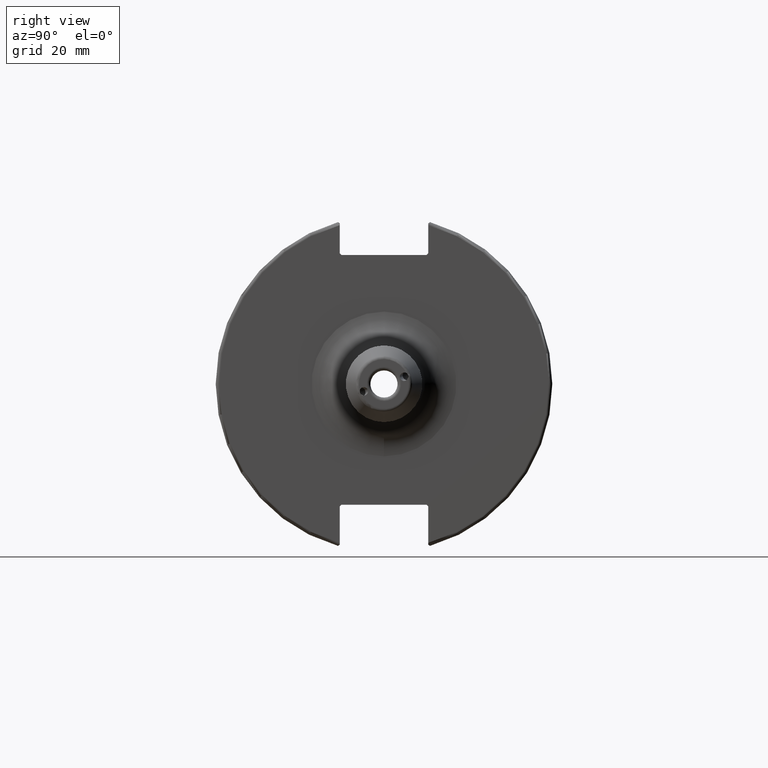
[diagram: clean part render]
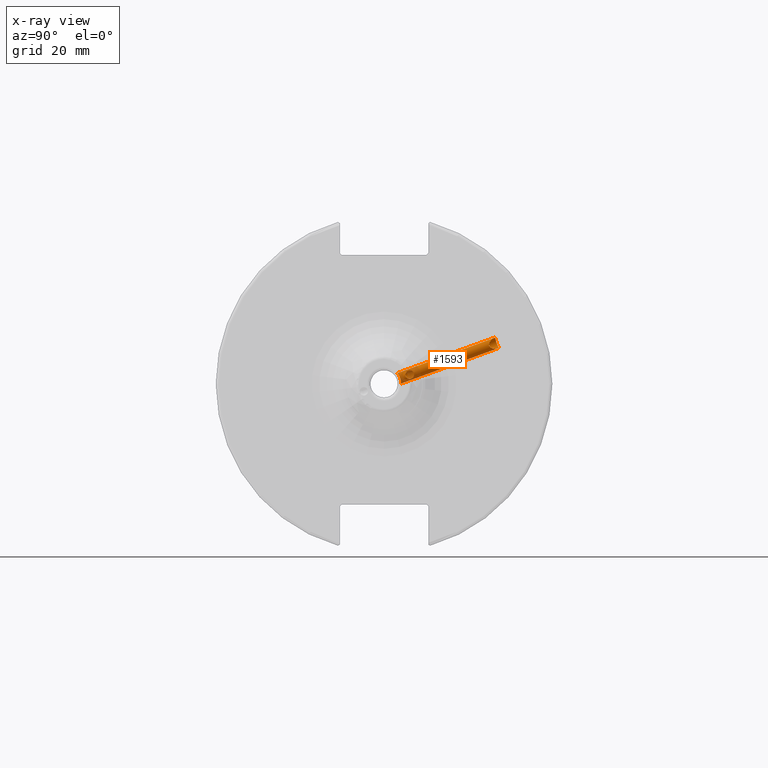
[diagram: x-ray — body ghosted, one internal face saturated and labeled with its STEP entity id]
A machine part, right view, then the same camera in x-ray: the body is ghosted and one INTERNAL B-rep face — a face not visible from any outside direction — is saturated and labeled: STEP entity #1593.
In plain terms, the highlighted cylindrical surface (bore or boss wall) has radius 1.621 mm, axis along (-0, 0.9397, 0.342).
Its self-contained STEP definition (entity closure, byte-faithful):
#66=FACE_BOUND('',#322,.T.);
#222=FACE_OUTER_BOUND('',#321,.T.);
#321=EDGE_LOOP('',(#1227,#1228,#1229,#1230,#1231,#1232));
#322=EDGE_LOOP('',(#1233,#1234));
#425=LINE('',#2952,#520);
#520=VECTOR('',#2028,1.621);
#590=B_SPLINE_CURVE_WITH_KNOTS('',3,(#2388,#2389,#2390,#2391,#2392,#2393,
#2394,#2395,#2396,#2397,#2398,#2399,#2400,#2401,#2402,#2403,#2404,#2405,
#2406,#2407,#2408,#2409,#2410,#2411,#2412,#2413,#2414,#2415,#2416,#2417,
#2418,#2419),.UNSPECIFIED.,.F.,.F.,(4,2,2,2,2,2,2,2,2,2,2,2,2,2,2,4),(0.,
0.025045594426084,0.0500911888521681,0.100182377704336,0.148964641632015,
0.197746905559694,0.246529169487373,0.295311433415053,0.345402622267221,
0.370448216693305,0.395493811119389,0.420038660181087,0.444583509242785,
0.493673207366182,0.542208205170651,0.548655864493759),.UNSPECIFIED.);
#591=B_SPLINE_CURVE_WITH_KNOTS('',3,(#2420,#2421,#2422,#2423,#2424,#2425,
#2426,#2427,#2428,#2429,#2430,#2431,#2432,#2433),.UNSPECIFIED.,.F.,.F.,
(4,2,2,2,2,2,4),(0.548655864493759,0.590743202975119,0.639278200779588,
0.687813198584057,0.736902896707453,0.761447745769152,0.78599259483085),
 .UNSPECIFIED.);
#599=B_SPLINE_CURVE_WITH_KNOTS('',3,(#2636,#2637,#2638,#2639,#2640,#2641,
#2642,#2643,#2644,#2645,#2646,#2647,#2648,#2649,#2650,#2651,#2652,#2653,
#2654,#2655,#2656,#2657,#2658,#2659,#2660,#2661),.UNSPECIFIED.,.F.,.F.,
(4,2,2,2,2,2,2,2,2,2,2,2,4),(0.,0.0615571381436262,0.123114276287252,0.184646021803299,
0.246177767319345,0.307709512835392,0.369241258351438,0.430798396495064,
0.49235553463869,0.553912672782317,0.615469810925943,0.677001556441989,
0.738533301958035),.UNSPECIFIED.);
#600=B_SPLINE_CURVE_WITH_KNOTS('',3,(#2662,#2663,#2664,#2665,#2666,#2667,
#2668,#2669,#2670,#2671),.UNSPECIFIED.,.F.,.F.,(4,2,2,2,4),(0.738533301958035,
0.800065047474082,0.861596792990128,0.923153931133754,0.98471106927738),
 .UNSPECIFIED.);
#610=B_SPLINE_CURVE_WITH_KNOTS('',3,(#2908,#2909,#2910,#2911,#2912,#2913,
#2914,#2915,#2916,#2917,#2918,#2919,#2920,#2921,#2922,#2923,#2924,#2925,
#2926,#2927,#2928,#2929,#2930,#2931,#2932,#2933,#2934,#2935,#2936,#2937,
#2938,#2939),.UNSPECIFIED.,.F.,.F.,(4,2,2,2,2,2,2,2,2,2,2,2,2,2,2,4),(0.,
0.0884839677067702,0.17696793541354,0.264588928472713,0.29293468020263,
0.321280431932547,0.349626183662464,0.377971935392381,0.465592928451554,
0.554076896158325,0.642560863865095,0.674019283137882,0.705477702410668,
0.76839454095624,0.837532569122269,0.892424435682428),.UNSPECIFIED.);
#611=B_SPLINE_CURVE_WITH_KNOTS('',3,(#2940,#2941,#2942,#2943,#2944,#2945,
#2946,#2947,#2948,#2949,#2950,#2951),.UNSPECIFIED.,.F.,.F.,(4,2,2,2,2,4),
(0.892424435682428,0.947316302242586,1.01645433040861,1.07937116895419,
1.11082958822697,1.14228800749976),.UNSPECIFIED.);
#647=VERTEX_POINT('',#2385);
#648=VERTEX_POINT('',#2387);
#682=VERTEX_POINT('',#2634);
#683=VERTEX_POINT('',#2635);
#715=VERTEX_POINT('',#2906);
#716=VERTEX_POINT('',#2907);
#817=EDGE_CURVE('',#648,#647,#590,.T.);
#818=EDGE_CURVE('',#647,#648,#591,.T.);
#863=EDGE_CURVE('',#682,#683,#599,.T.);
#864=EDGE_CURVE('',#683,#682,#600,.T.);
#907=EDGE_CURVE('',#715,#716,#610,.T.);
#908=EDGE_CURVE('',#716,#715,#611,.T.);
#909=EDGE_CURVE('',#716,#683,#425,.T.);
#1227=ORIENTED_EDGE('',*,*,#907,.F.);
#1228=ORIENTED_EDGE('',*,*,#908,.F.);
#1229=ORIENTED_EDGE('',*,*,#909,.T.);
#1230=ORIENTED_EDGE('',*,*,#864,.T.);
#1231=ORIENTED_EDGE('',*,*,#863,.T.);
#1232=ORIENTED_EDGE('',*,*,#909,.F.);
#1233=ORIENTED_EDGE('',*,*,#817,.T.);
#1234=ORIENTED_EDGE('',*,*,#818,.T.);
#1548=CYLINDRICAL_SURFACE('',#1746,1.621);
#1593=ADVANCED_FACE('',(#222,#66),#1548,.F.);
#1746=AXIS2_PLACEMENT_3D('',#2905,#2026,#2027);
#2026=DIRECTION('center_axis',(-1.20908356884163E-16,0.939692620785908,
0.342020143325669));
#2027=DIRECTION('ref_axis',(1.,1.28667985902711E-16,0.));
#2028=DIRECTION('',(1.20908356884163E-16,-0.939692620785908,-0.342020143325669));
#2385=CARTESIAN_POINT('',(12.6925667925574,8.75406849713554,2.73895970133337));
#2387=CARTESIAN_POINT('',(12.1833951675391,7.12010129947421,3.89991150922786));
#2388=CARTESIAN_POINT('Ctrl Pts',(12.1833951675391,7.12010129947421,3.89991150922786));
#2389=CARTESIAN_POINT('Ctrl Pts',(12.1833951675391,7.04165076525625,3.87135784991024));
#2390=CARTESIAN_POINT('Ctrl Pts',(12.1935820348692,6.96599669617725,3.83470617355099));
#2391=CARTESIAN_POINT('Ctrl Pts',(12.230396857951,6.8242024148161,3.74778330344678));
#2392=CARTESIAN_POINT('Ctrl Pts',(12.256929684032,6.75804792244897,3.69749514106935));
#2393=CARTESIAN_POINT('Ctrl Pts',(12.3493794508506,6.57767811246163,3.53092053777448));
#2394=CARTESIAN_POINT('Ctrl Pts',(12.427352432405,6.48162429631099,3.39782302681427));
#2395=CARTESIAN_POINT('Ctrl Pts',(12.5611553668651,6.35126513468876,3.12629947762893));
#2396=CARTESIAN_POINT('Ctrl Pts',(12.6279216125252,6.30641843950241,2.96819479769488));
#2397=CARTESIAN_POINT('Ctrl Pts',(12.7216694070153,6.28577656387845,2.64007500020454));
#2398=CARTESIAN_POINT('Ctrl Pts',(12.748,6.31041630515726,2.46984703744832));
#2399=CARTESIAN_POINT('Ctrl Pts',(12.748,6.4216464178259,2.16424481452785));
#2400=CARTESIAN_POINT('Ctrl Pts',(12.7216694070153,6.51219170622126,2.01800450919508));
#2401=CARTESIAN_POINT('Ctrl Pts',(12.6279216125252,6.73891564065819,1.77991850354205));
#2402=CARTESIAN_POINT('Ctrl Pts',(12.5611553668651,6.874897931593,1.68763019204864));
#2403=CARTESIAN_POINT('Ctrl Pts',(12.427352432405,7.14929081611781,1.56342433991917));
#2404=CARTESIAN_POINT('Ctrl Pts',(12.3493794508506,7.30842573914573,1.52320793413987));
#2405=CARTESIAN_POINT('Ctrl Pts',(12.256929684032,7.55366912087935,1.51154386394246));
#2406=CARTESIAN_POINT('Ctrl Pts',(12.230396857951,7.63667100983466,1.51554418461726));
#2407=CARTESIAN_POINT('Ctrl Pts',(12.1935820348692,7.8011646750388,1.54010101017733));
#2408=CARTESIAN_POINT('Ctrl Pts',(12.1833951675391,7.88267829769407,1.56065369539769));
#2409=CARTESIAN_POINT('Ctrl Pts',(12.1833951675391,8.03801087705064,1.61719013069527));
#2410=CARTESIAN_POINT('Ctrl Pts',(12.1932152318143,8.11227932168664,1.65300359007442));
#2411=CARTESIAN_POINT('Ctrl Pts',(12.229400565676,8.25104035436311,1.73818405294648));
#2412=CARTESIAN_POINT('Ctrl Pts',(12.2556770968914,8.31554899851588,1.78756257314868));
#2413=CARTESIAN_POINT('Ctrl Pts',(12.3476867349405,8.49032860096784,1.95137409511336));
#2414=CARTESIAN_POINT('Ctrl Pts',(12.4258009354927,8.58185974900871,2.08270364042412));
#2415=CARTESIAN_POINT('Ctrl Pts',(12.5605095590721,8.70490024269459,2.35216601428128));
#2416=CARTESIAN_POINT('Ctrl Pts',(12.6278541355931,8.74566160317639,2.50998527483263));
#2417=CARTESIAN_POINT('Ctrl Pts',(12.6811260279815,8.75385604159423,2.69526302127143));
#2418=CARTESIAN_POINT('Ctrl Pts',(12.6870325251844,8.75425010295389,2.71708768061763));
#2419=CARTESIAN_POINT('Ctrl Pts',(12.6925667925574,8.75406849713554,2.73895970133726));
#2420=CARTESIAN_POINT('Ctrl Pts',(12.6925667925574,8.75406849713553,2.73895970133726));
#2421=CARTESIAN_POINT('Ctrl Pts',(12.728691930767,8.752883058333,2.88173013835449));
#2422=CARTESIAN_POINT('Ctrl Pts',(12.748,8.72612638434642,3.02675556396527));
#2423=CARTESIAN_POINT('Ctrl Pts',(12.748,8.62281083619646,3.31061269958585));
#2424=CARTESIAN_POINT('Ctrl Pts',(12.7219038347232,8.53429206877315,3.45756756113048));
#2425=CARTESIAN_POINT('Ctrl Pts',(12.6278541355931,8.31295290767036,3.6988426449371));
#2426=CARTESIAN_POINT('Ctrl Pts',(12.5605095590721,8.18028362872702,3.79353831502794));
#2427=CARTESIAN_POINT('Ctrl Pts',(12.4258009354927,7.91282206706823,3.92086956431987));
#2428=CARTESIAN_POINT('Ctrl Pts',(12.3476867349405,7.75828813522769,3.96263874486146));
#2429=CARTESIAN_POINT('Ctrl Pts',(12.2556770968914,7.51910317535604,3.97577948809931));
#2430=CARTESIAN_POINT('Ctrl Pts',(12.229400565676,7.43794678599903,3.97214027193057));
#2431=CARTESIAN_POINT('Ctrl Pts',(12.1932152318143,7.27689672187425,3.94819841966427));
#2432=CARTESIAN_POINT('Ctrl Pts',(12.1833951675391,7.19698334461282,3.92789428520782));
#2433=CARTESIAN_POINT('Ctrl Pts',(12.1833951675391,7.12010129947421,3.89991150922786));
#2634=CARTESIAN_POINT('',(11.127,4.9991070090308,0.0944939800153009));
#2635=CARTESIAN_POINT('',(9.50600000000001,4.69846310392954,1.71010071662834));
#2636=CARTESIAN_POINT('Ctrl Pts',(11.127,4.9991070090308,0.0944939800153009));
#2637=CARTESIAN_POINT('Ctrl Pts',(11.3321904604788,4.9991070090308,0.0944939800153003));
#2638=CARTESIAN_POINT('Ctrl Pts',(11.5499450588817,4.99884098678372,0.138360894305665));
#2639=CARTESIAN_POINT('Ctrl Pts',(11.9488278062023,4.99101167717621,0.312020890824146));
#2640=CARTESIAN_POINT('Ctrl Pts',(12.13009959843,4.98264433018653,0.44144663116281));
#2641=CARTESIAN_POINT('Ctrl Pts',(12.4162815482567,4.94810003706503,0.733422006592142));
#2642=CARTESIAN_POINT('Ctrl Pts',(12.5408092905,4.91949892098376,0.915942632748048));
#2643=CARTESIAN_POINT('Ctrl Pts',(12.7067079427904,4.83007600423685,1.30797031013204));
#2644=CARTESIAN_POINT('Ctrl Pts',(12.748,4.76861342533113,1.51736429260999));
#2645=CARTESIAN_POINT('Ctrl Pts',(12.748,4.62831278252795,1.90283714064669));
#2646=CARTESIAN_POINT('Ctrl Pts',(12.7067079427904,4.54079999207869,2.10274962152647));
#2647=CARTESIAN_POINT('Ctrl Pts',(12.5408092905,4.35731138686353,2.46054018824225));
#2648=CARTESIAN_POINT('Ctrl Pts',(12.4162815482567,4.26189911589935,2.61874354270383));
#2649=CARTESIAN_POINT('Ctrl Pts',(12.13009959843,4.10068342602699,2.86461430018292));
#2650=CARTESIAN_POINT('Ctrl Pts',(11.9488278062023,4.02389992342788,2.96913859633684));
#2651=CARTESIAN_POINT('Ctrl Pts',(11.5499450588817,3.91827102848589,3.10720245486998));
#2652=CARTESIAN_POINT('Ctrl Pts',(11.3321904604788,3.89027770436898,3.14097745660322));
#2653=CARTESIAN_POINT('Ctrl Pts',(10.9218095395212,3.89027770436898,3.14097745660322));
#2654=CARTESIAN_POINT('Ctrl Pts',(10.7040549411183,3.91827102848589,3.10720245486998));
#2655=CARTESIAN_POINT('Ctrl Pts',(10.3051721937977,4.02389992342789,2.96913859633683));
#2656=CARTESIAN_POINT('Ctrl Pts',(10.12390040157,4.10068342602699,2.86461430018292));
#2657=CARTESIAN_POINT('Ctrl Pts',(9.83771845174332,4.26189911589935,2.61874354270383));
#2658=CARTESIAN_POINT('Ctrl Pts',(9.71319070950005,4.35731138686353,2.46054018824225));
#2659=CARTESIAN_POINT('Ctrl Pts',(9.5472920572096,4.54079999207869,2.10274962152646));
#2660=CARTESIAN_POINT('Ctrl Pts',(9.50600000000001,4.62831278252795,1.90283714064669));
#2661=CARTESIAN_POINT('Ctrl Pts',(9.50600000000001,4.69846310392954,1.71010071662834));
#2662=CARTESIAN_POINT('Ctrl Pts',(9.50600000000001,4.69846310392954,1.71010071662834));
#2663=CARTESIAN_POINT('Ctrl Pts',(9.50600000000001,4.76861342533113,1.51736429260999));
#2664=CARTESIAN_POINT('Ctrl Pts',(9.5472920572096,4.83007600423685,1.30797031013204));
#2665=CARTESIAN_POINT('Ctrl Pts',(9.71319070950005,4.91949892098376,0.915942632748052));
#2666=CARTESIAN_POINT('Ctrl Pts',(9.83771845174332,4.94810003706503,0.733422006592146));
#2667=CARTESIAN_POINT('Ctrl Pts',(10.12390040157,4.98264433018653,0.441446631162813));
#2668=CARTESIAN_POINT('Ctrl Pts',(10.3051721937977,4.99101167717621,0.312020890824149));
#2669=CARTESIAN_POINT('Ctrl Pts',(10.7040549411183,4.99884098678372,0.138360894305667));
#2670=CARTESIAN_POINT('Ctrl Pts',(10.9218095395213,4.9991070090308,0.0944939800153013));
#2671=CARTESIAN_POINT('Ctrl Pts',(11.127,4.9991070090308,0.0944939800153008));
#2905=CARTESIAN_POINT('Origin',(11.127,21.5598376450015,7.84713915839248));
#2906=CARTESIAN_POINT('',(11.127,33.3180066739614,10.4017305252212));
#2907=CARTESIAN_POINT('',(9.506,32.9302546125277,11.9856324857674));
#2908=CARTESIAN_POINT('Ctrl Pts',(11.127,33.3180066739614,10.4017305252212));
#2909=CARTESIAN_POINT('Ctrl Pts',(11.3686060767793,33.1590347421905,10.3438694739727));
#2910=CARTESIAN_POINT('Ctrl Pts',(11.5793820284691,32.9265222260495,10.3130739191917));
#2911=CARTESIAN_POINT('Ctrl Pts',(11.9610018879898,32.4227535856658,10.3052665038932));
#2912=CARTESIAN_POINT('Ctrl Pts',(12.1308400889368,32.1507028147897,10.3305992558997));
#2913=CARTESIAN_POINT('Ctrl Pts',(12.4142114787667,31.6507121188742,10.450175059589));
#2914=CARTESIAN_POINT('Ctrl Pts',(12.5624213105869,31.3550631351684,10.5662118597017));
#2915=CARTESIAN_POINT('Ctrl Pts',(12.6780350131118,31.0691918693162,10.7993137473042));
#2916=CARTESIAN_POINT('Ctrl Pts',(12.7040094113745,30.9979746661842,10.8699279351394));
#2917=CARTESIAN_POINT('Ctrl Pts',(12.7390906022264,30.8779301513201,11.0303555632259));
#2918=CARTESIAN_POINT('Ctrl Pts',(12.748,30.8293999774207,11.1204342022846));
#2919=CARTESIAN_POINT('Ctrl Pts',(12.748,30.7647678569584,11.2980094938262));
#2920=CARTESIAN_POINT('Ctrl Pts',(12.7390906022264,30.7440426939133,11.3982083291993));
#2921=CARTESIAN_POINT('Ctrl Pts',(12.7040094113745,30.7328812358665,11.5982661489831));
#2922=CARTESIAN_POINT('Ctrl Pts',(12.6780350131118,30.7420468535717,11.6981372909494));
#2923=CARTESIAN_POINT('Ctrl Pts',(12.5624213105869,30.8112019430797,12.0604582042831));
#2924=CARTESIAN_POINT('Ctrl Pts',(12.4142114787667,30.9630951867812,12.3393870537492));
#2925=CARTESIAN_POINT('Ctrl Pts',(12.1308400889368,31.2692484359686,12.7523752579899));
#2926=CARTESIAN_POINT('Ctrl Pts',(11.9610018879898,31.4613678381355,12.9466521366183));
#2927=CARTESIAN_POINT('Ctrl Pts',(11.5793820284691,31.8522955155365,13.264487549701));
#2928=CARTESIAN_POINT('Ctrl Pts',(11.3686060767793,32.0502054375286,13.3903529505607));
#2929=CARTESIAN_POINT('Ctrl Pts',(11.0411025718087,32.2656961467896,13.4687851544926));
#2930=CARTESIAN_POINT('Ctrl Pts',(10.9475197272613,32.319337112024,13.4809373024586));
#2931=CARTESIAN_POINT('Ctrl Pts',(10.7524056152646,32.4120347916018,13.478660481775));
#2932=CARTESIAN_POINT('Ctrl Pts',(10.6508468329885,32.4510290142907,13.4640493136015));
#2933=CARTESIAN_POINT('Ctrl Pts',(10.3515687330207,32.5462208483495,13.3776426663642));
#2934=CARTESIAN_POINT('Ctrl Pts',(10.1588386735598,32.5827431071443,13.2604924449868));
#2935=CARTESIAN_POINT('Ctrl Pts',(9.84134561894807,32.655830196381,12.9644900573906));
#2936=CARTESIAN_POINT('Ctrl Pts',(9.69002806088231,32.7033162128217,12.737930692361));
#2937=CARTESIAN_POINT('Ctrl Pts',(9.54526126545399,32.8036762615874,12.3639022622834));
#2938=CARTESIAN_POINT('Ctrl Pts',(9.506,32.8676741989667,12.1575707589266));
#2939=CARTESIAN_POINT('Ctrl Pts',(9.506,32.9302546125277,11.9856324857674));
#2940=CARTESIAN_POINT('Ctrl Pts',(9.506,32.9302546125277,11.9856324857674));
#2941=CARTESIAN_POINT('Ctrl Pts',(9.506,32.9928350260888,11.8136942126083));
#2942=CARTESIAN_POINT('Ctrl Pts',(9.54526126545399,33.0764370956341,11.6144980298285));
#2943=CARTESIAN_POINT('Ctrl Pts',(9.69002806088231,33.2399776784904,11.2634654335448));
#2944=CARTESIAN_POINT('Ctrl Pts',(9.84134561894807,33.3492308321696,11.0593874679259));
#2945=CARTESIAN_POINT('Ctrl Pts',(10.1588386735598,33.4835095407806,10.7856570083685));
#2946=CARTESIAN_POINT('Ctrl Pts',(10.3515687330207,33.5308345781541,10.6724386768412));
#2947=CARTESIAN_POINT('Ctrl Pts',(10.6508468329885,33.5134545248817,10.5450592134001));
#2948=CARTESIAN_POINT('Ctrl Pts',(10.7524056152646,33.4929750951421,10.5088014060196));
#2949=CARTESIAN_POINT('Ctrl Pts',(10.9475197272613,33.4234280649364,10.4474723403076));
#2950=CARTESIAN_POINT('Ctrl Pts',(11.0411025718087,33.3745254514514,10.4223016779046));
#2951=CARTESIAN_POINT('Ctrl Pts',(11.127,33.3180066739614,10.4017305252212));
#2952=CARTESIAN_POINT('',(9.506,21.5598376450015,7.84713915839248));